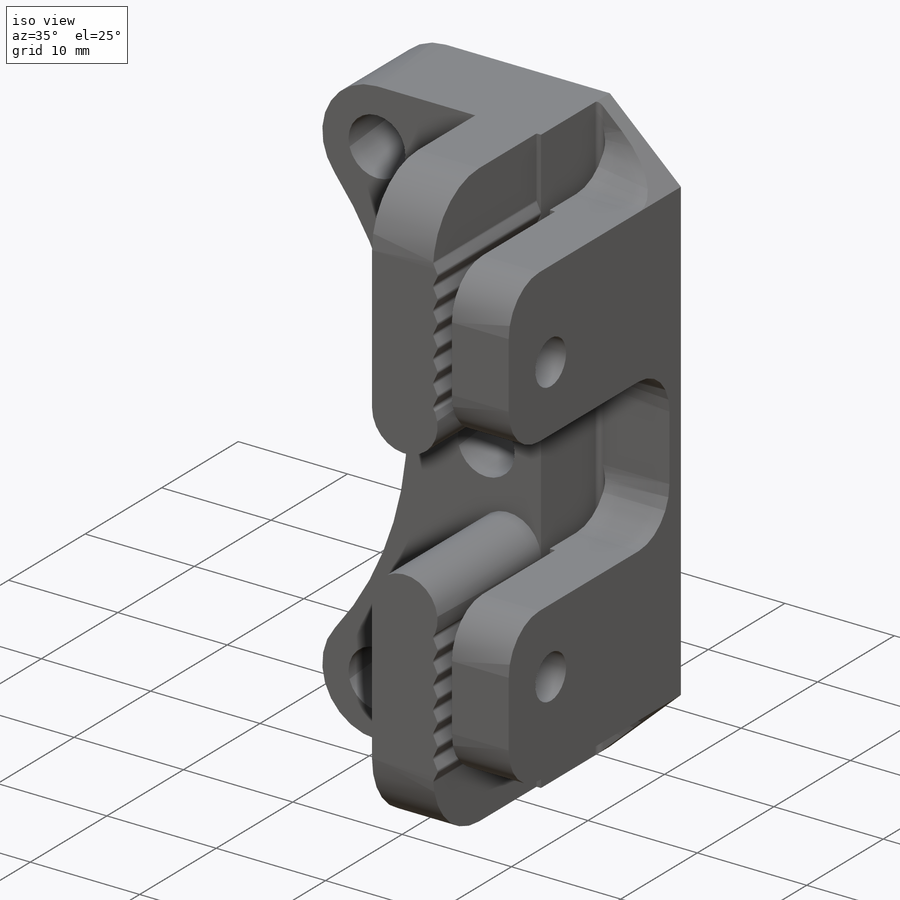
[diagram: iso view]
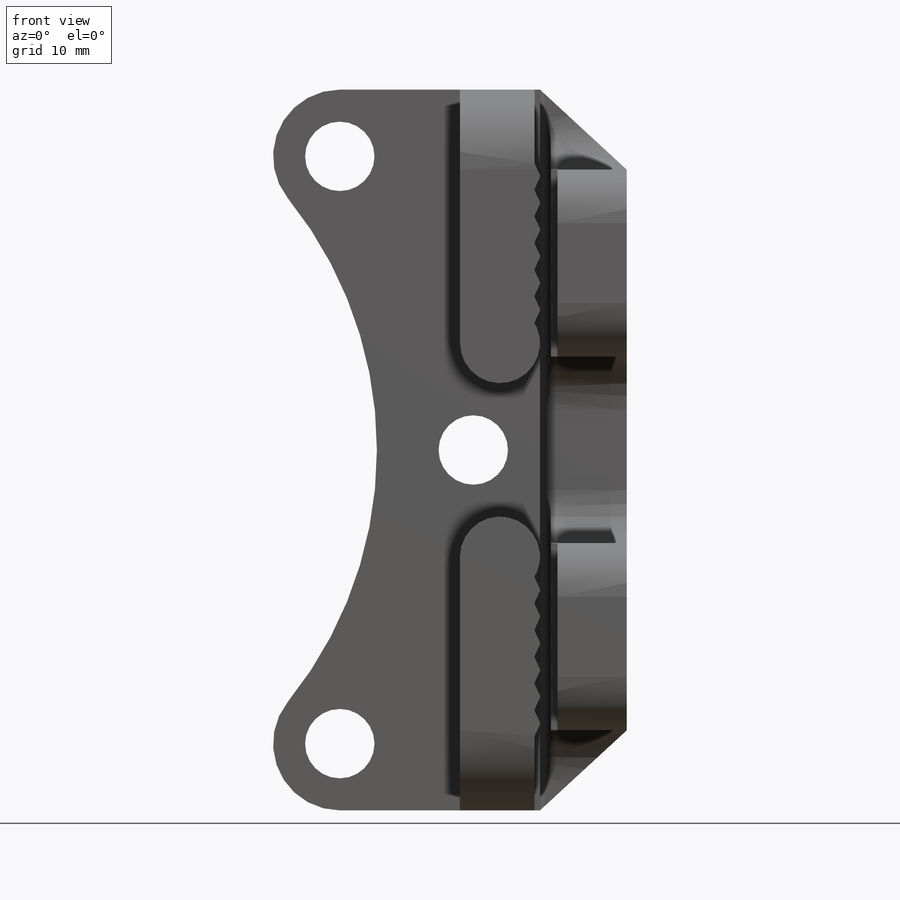
[diagram: front view]
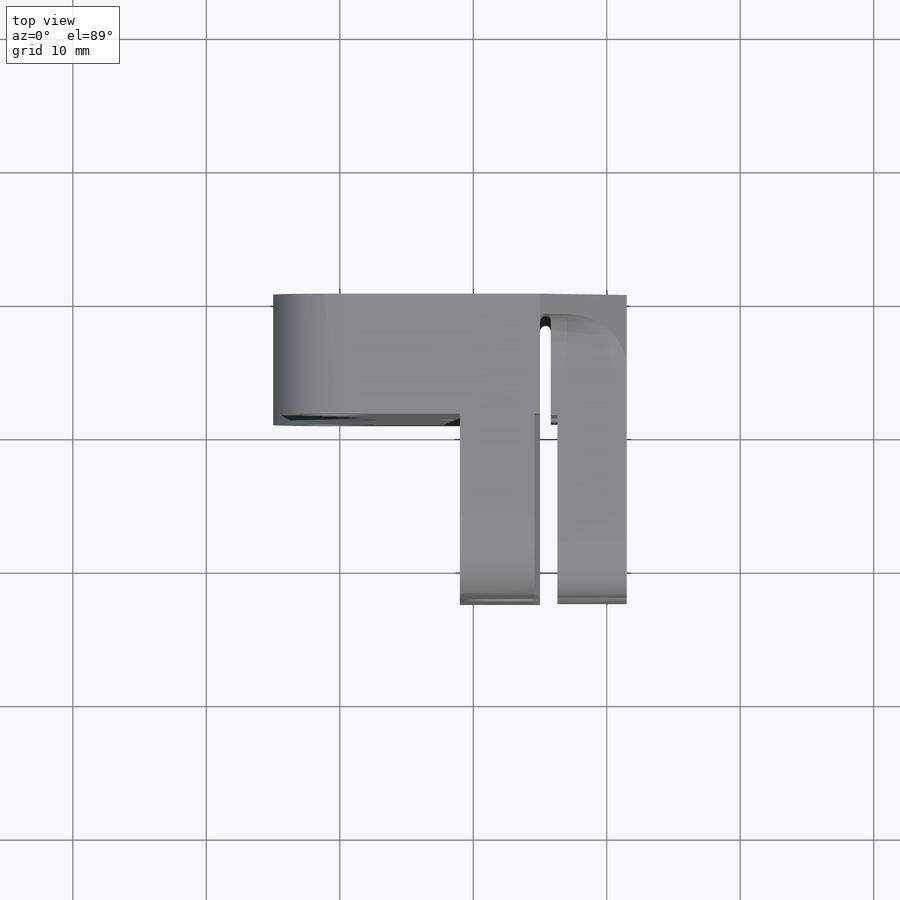
[diagram: top view]
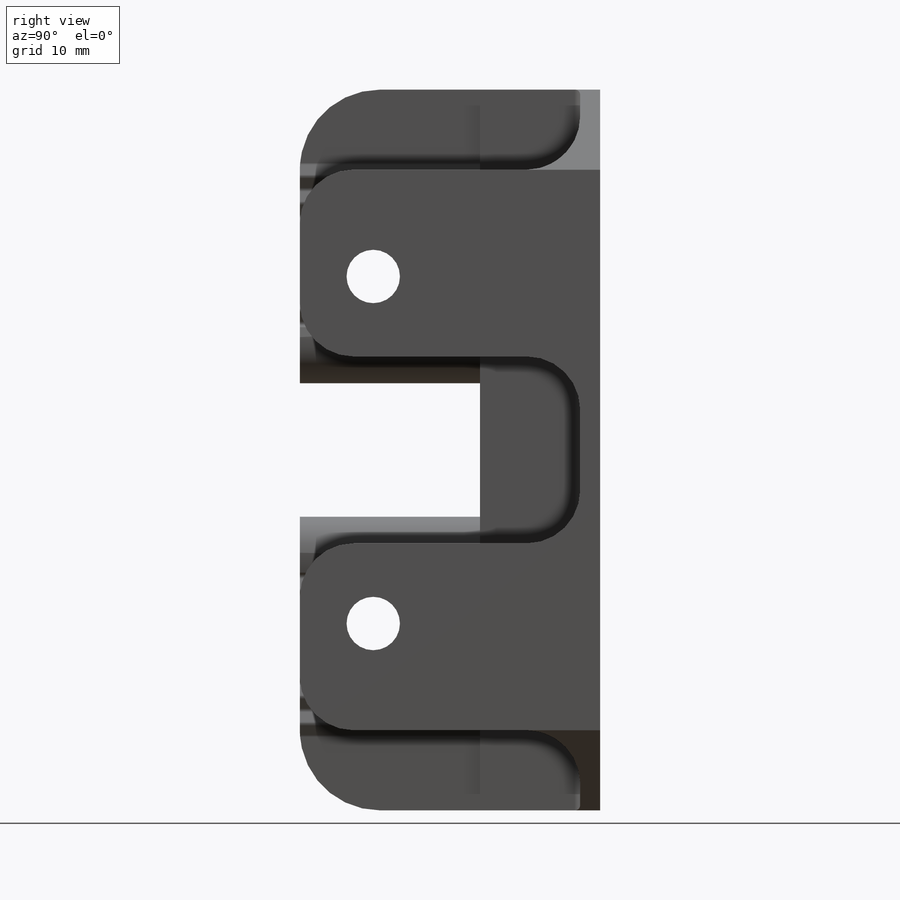
[diagram: right view]
SOLIDWORKS PART (.sldprt)
format: sldprt  version: not decoded by parser v0  size: 471,040 bytes
history: native  units: mm
features: sketch x8, extrude x5, fillet x4, cut_extrude x3, material x1, chamfer x1, mirror x1 (+11 scaffold rows collapsed)
feature tree (34):
  scaffold x11  (default folders/planes/origin — collapsed)
  material  "Material <not specified>"
  sketch  "Sketch1"  dims[c1.D6=5.2mm c1.D9=5.0mm c1.D5=30.0mm c1.D1=5.0mm c1.D2=27.0mm c1.D3=27.0mm c1.D4=10.0mm c2.D5=5.0mm c2.D7=5.0mm c2.D8=5.0mm c2.D10=~3.264033mm]
  extrude  "Boss-Extrude1"  Depth=9mm
  sketch  "Sketch2"  dims[c1.D2=3.0mm c1.D1=6.0mm c2.D2=10.0mm c2.D3=5.0mm]
  extrude  "Boss-Extrude2"  Depth=22.5mm
  sketch  "Sketch3"  dims[c1.D5=5.2mm c1.D1=13.0mm c1.D2=13.0mm c1.D3=5.0mm c1.D4=12.0mm c2.D3=5.0mm]
  cut_extrude  "Cut-Extrude1"  Depth=30mm
  fillet  "Fillet1"  Radius=6mm
  chamfer  "Chamfer1"  Distance=1mm Angle=45deg
  sketch  "Sketch4"  dims[c1.D2=3.0mm c1.D1=6.5mm c2.D2=16.0mm c2.D3=16.0mm]
  extrude  "Boss-Extrude3"  Depth=1.5mm
  sketch  "Sketch5"  dims[D1=14.0mm D2=1.3mm]
  extrude  "Boss-Extrude4"  [1 undecoded]
  sketch  "Sketch6"  dims[D1=4.0mm]
  cut_extrude  "Cut-Extrude2"  Depth=6mm
  sketch  "Sketch7"  dims[D1=0.5mm]
  extrude  "Boss-Extrude5"  [1 undecoded]
  fillet  "Fillet5"  Radius=0.4mm
  fillet  "Fillet3"  Radius=4mm
  fillet  "Fillet4"  Radius=4mm
  sketch  "Sketch8"  dims[c1.D1=0.6mm c1.D3=0.6mm c1.D2=~0.857039mm c2.D3=0.4mm c2.D2=1.5mm c2.D4=2.0mm c2.D5=1.0mm c2.D6=1.0mm c2.D7=1.0mm c2.D8=1.0mm c2.D9=1.0mm c2.D10=1.0mm c2.D11=2.0mm c2.D12=1.0mm c2.D13=1.0mm c2.D14=1.0mm c2.D15=1.0mm c3.D2=0.4mm c3.D3=1.5mm]
  cut_extrude  "Cut-Extrude3"  [1 undecoded]
  mirror  "Mirror1"
decode coverage: 18 of 22 modeling features carry decoded parameters
note: ~ marks probable driven/reference dimensions
note: 3 parameter values undecoded
summary: no parameter record found for 3 features
note: suppression state not decoded; provenance and decode notes live in map.json
